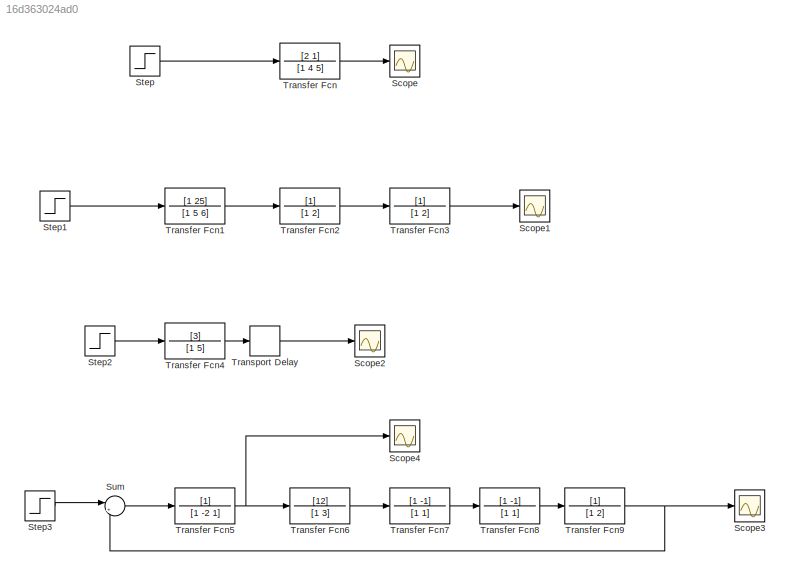
MODEL slx_16d363024ad0
KIND model
CONFIG AbsTol = auto
CONFIG EnableMultiTasking = on
CONFIG FixedStep = auto
CONFIG MaxStep = 0.003
CONFIG MinStep = 0.001
CONFIG RelTol = 1e-3
CONFIG SampleTimeConstraint = Unconstrained
CONFIG Solver = VariableStepAuto
CONFIG SolverName = VariableStepAuto
CONFIG StartTime = 0.0
CONFIG StopTime = 30
BLOCK [Scope] Scope
  Floating = off
  NumInputPorts = 1
  Ports = [1]
  ScopeSpecificationString = Simulink.scopes.TimeScopeBlockCfg('CurrentConfiguration', extmgr.ConfigurationSet(extmgr.Configuration('Core','General UI',true),extmgr.Configuration('Core','Source UI',true),extmgr.Configuration('Sources','WiredSimulink',true),extmgr.Configuration('Visuals','Time Domain',true,'SerializedDisplays',{struct('MinYLimReal','-0.05281','MaxYLimReal','0.47528','YLabelReal','','MinYLimMag','0.00000','MaxY...<+1359ch>
BLOCK [Scope] Scope1
  Floating = off
  NumInputPorts = 1
  Ports = [1]
  ScopeSpecificationString = Simulink.scopes.TimeScopeBlockCfg('CurrentConfiguration', extmgr.ConfigurationSet(extmgr.Configuration('Core','General UI',true),extmgr.Configuration('Core','Source UI',true),extmgr.Configuration('Sources','WiredSimulink',true,'DataLoggingVariableName','ScopeData1'),extmgr.Configuration('Visuals','Time Domain',true,'SerializedDisplays',{struct('MinYLimReal','-0.13021','MaxYLimReal','1.17187','YLab...<+1399ch>
BLOCK [Scope] Scope2
  Floating = off
  NumInputPorts = 1
  Ports = [1]
  ScopeSpecificationString = Simulink.scopes.TimeScopeBlockCfg('CurrentConfiguration', extmgr.ConfigurationSet(extmgr.Configuration('Core','General UI',true),extmgr.Configuration('Core','Source UI',true),extmgr.Configuration('Sources','WiredSimulink',true,'DataLoggingVariableName','ScopeData2'),extmgr.Configuration('Visuals','Time Domain',true,'SerializedDisplays',{struct('MinYLimReal','-0.075','MaxYLimReal','0.675','YLabelRe...<+1389ch>
BLOCK [Scope] Scope3
  Floating = off
  NumInputPorts = 1
  Ports = [1]
  ScopeSpecificationString = Simulink.scopes.TimeScopeBlockCfg('CurrentConfiguration', extmgr.ConfigurationSet(extmgr.Configuration('Core','General UI',true),extmgr.Configuration('Core','Source UI',true),extmgr.Configuration('Sources','WiredSimulink',true,'DataLoggingVariableName','ScopeData3'),extmgr.Configuration('Visuals','Time Domain',true,'SerializedDisplays',{struct('MinYLimReal','-0.11717','MaxYLimReal','1.05451','YLab...<+1400ch>
BLOCK [Scope] Scope4
  Floating = off
  NumInputPorts = 1
  Ports = [1]
  ScopeSpecificationString = Simulink.scopes.TimeScopeBlockCfg('CurrentConfiguration', extmgr.ConfigurationSet(extmgr.Configuration('Core','General UI',true),extmgr.Configuration('Core','Source UI',true),extmgr.Configuration('Sources','WiredSimulink',true,'DataLoggingVariableName','ScopeData4'),extmgr.Configuration('Visuals','Time Domain',true,'SerializedDisplays',{struct('MinYLimReal','-11109201381901.3418','MaxYLimReal','99...<+1501ch>
BLOCK [Step] Step
  SampleTime = 0
BLOCK [Step] Step1
  SampleTime = 0
BLOCK [Step] Step2
  SampleTime = 0
BLOCK [Step] Step3
  SampleTime = 0
BLOCK [Sum] Sum
  IconShape = round
  InputSameDT = off
  Inputs = |+-
  OutDataTypeStr = Inherit: Inherit via internal rule
  Ports = [2, 1]
  SaturateOnIntegerOverflow = off
BLOCK [TransferFcn] Transfer Fcn
  Denominator = [1 4 5]
  Numerator = [2 1]
BLOCK [TransferFcn] Transfer Fcn1
  Denominator = [1 5 6]
  Numerator = [1 25]
BLOCK [TransferFcn] Transfer Fcn2
  Denominator = [1 2]
BLOCK [TransferFcn] Transfer Fcn3
  Denominator = [1 2]
BLOCK [TransferFcn] Transfer Fcn4
  Denominator = [1 5]
  Numerator = [3]
BLOCK [TransferFcn] Transfer Fcn5
  Denominator = [1 -2  1]
BLOCK [TransferFcn] Transfer Fcn6
  Denominator = [1 3]
  Numerator = [12]
BLOCK [TransferFcn] Transfer Fcn7
  Denominator = [1 1]
  Numerator = [1 -1]
BLOCK [TransferFcn] Transfer Fcn8
  Denominator = [1 1]
  Numerator = [1 -1]
BLOCK [TransferFcn] Transfer Fcn9
  Denominator = [1 2]
BLOCK [TransportDelay] Transport Delay
  DelayTime = 0.5
  Ports = [1, 1]
LINE Step1:1 -> Transfer Fcn1:1
LINE Step2:1 -> Transfer Fcn4:1
LINE Step3:1 -> Sum:1
LINE Step:1 -> Transfer Fcn:1
LINE Sum:1 -> Transfer Fcn5:1
LINE Transfer Fcn1:1 -> Transfer Fcn2:1
LINE Transfer Fcn2:1 -> Transfer Fcn3:1
LINE Transfer Fcn3:1 -> Scope1:1
LINE Transfer Fcn4:1 -> Transport Delay:1
NET Transfer Fcn5:1 -> Scope4:1, Transfer Fcn6:1
LINE Transfer Fcn6:1 -> Transfer Fcn7:1
LINE Transfer Fcn7:1 -> Transfer Fcn8:1
LINE Transfer Fcn8:1 -> Transfer Fcn9:1
NET Transfer Fcn9:1 -> Scope3:1, Sum:2
LINE Transfer Fcn:1 -> Scope:1
LINE Transport Delay:1 -> Scope2:1
note: NET lines group one-source signal fan-out (src -> all destinations, sorted); 1:1 wires keep LINE
